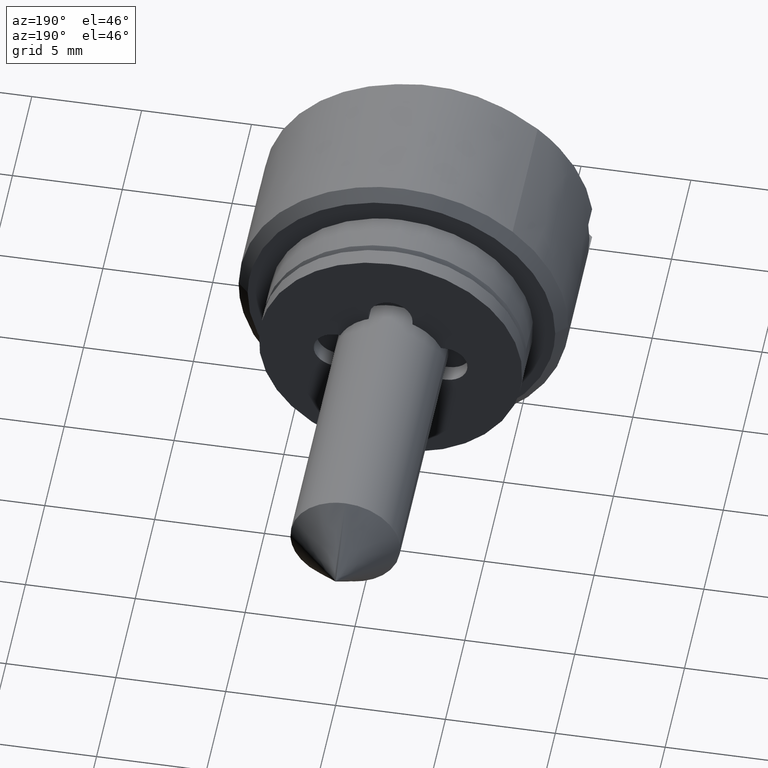
[diagram: clean part render]
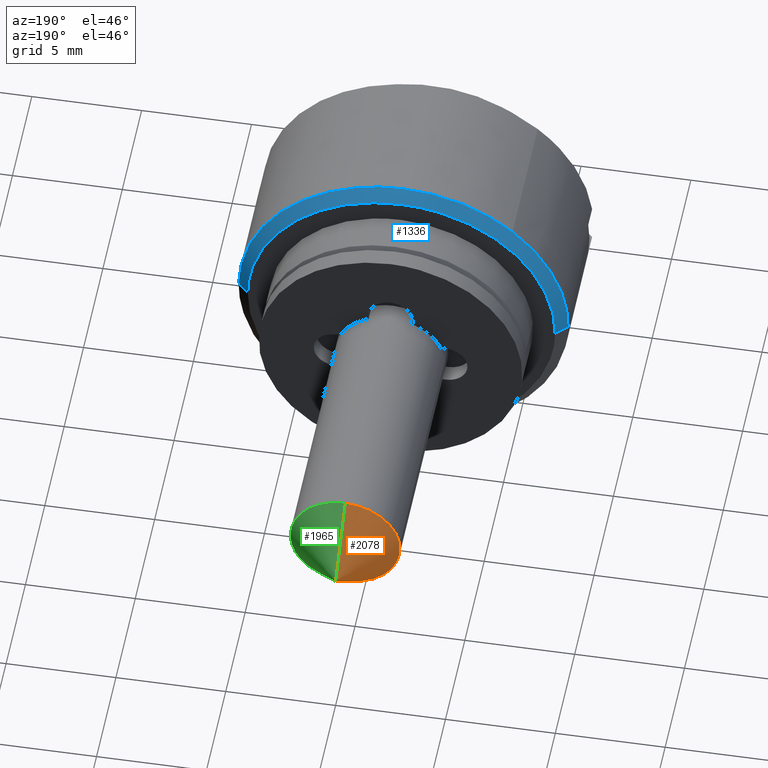
[diagram: same view with three faces highlighted in distinct colors, each labeled with its STEP entity id]
A machine part, auxiliary view with three faces highlighted in distinct colors.
Their STEP definitions:

[orange] entity #2078 — the highlighted face is a freeform B-spline surface patch.
#1457=CARTESIAN_POINT('',(12.500000000000000,2.482523815906725,0.295085586662429));
#1458=VERTEX_POINT('',#1457);
#1459=CARTESIAN_POINT('',(12.500000000000011,0.0,-2.500000000000007));
#1460=VERTEX_POINT('',#1459);
#1461=CARTESIAN_POINT('',(12.500000000000000,2.482523815906725,0.295085586662429));
#1462=CARTESIAN_POINT('',(12.499999999999996,2.499999999999999,0.148060299150525));
#1463=CARTESIAN_POINT('',(12.500000000000000,2.500000000000000,0.0));
#1464=CARTESIAN_POINT('',(12.500000000000000,2.500000000000000,-2.500000000000000));
#1465=CARTESIAN_POINT('',(12.500000000000000,0.0,-2.500000000000000));
#1473=(BOUNDED_CURVE()B_SPLINE_CURVE(2,(#1461,#1462,#1463,#1464,#1465),.UNSPECIFIED.,.F.,.U.)B_SPLINE_CURVE_WITH_KNOTS((3,2,3),(0.459124947025697,0.500000000000000,1.0),.UNSPECIFIED.)CURVE()GEOMETRIC_REPRESENTATION_ITEM()RATIONAL_B_SPLINE_CURVE((0.956026754182406,0.976055948330372,1.0,0.707106781186548,1.0))REPRESENTATION_ITEM(''));
#1474=EDGE_CURVE('',#1458,#1460,#1473,.T.);
#1556=CARTESIAN_POINT('',(12.500000000000011,0.0,2.500000000000007));
#1557=VERTEX_POINT('',#1556);
#1558=CARTESIAN_POINT('',(12.500000000000000,0.0,2.500000000000000));
#1559=CARTESIAN_POINT('',(12.499999999999998,2.220436314841433,2.500000000000000));
#1560=CARTESIAN_POINT('',(12.500000000000000,2.482523815906725,0.295085586662429));
#1568=(BOUNDED_CURVE()B_SPLINE_CURVE(2,(#1558,#1559,#1560),.UNSPECIFIED.,.F.,.U.)B_SPLINE_CURVE_WITH_KNOTS((3,3),(0.0,0.459124947025698),.UNSPECIFIED.)CURVE()GEOMETRIC_REPRESENTATION_ITEM()RATIONAL_B_SPLINE_CURVE((1.0,0.731050832856175,0.956026754182406))REPRESENTATION_ITEM(''));
#1569=EDGE_CURVE('',#1557,#1458,#1568,.T.);
#1949=CARTESIAN_POINT('',(15.0,0.0,0.0));
#1950=VERTEX_POINT('',#1949);
#1951=CARTESIAN_POINT('',(15.0,0.0,0.0));
#1952=CARTESIAN_POINT('',(12.500000000000011,0.0,2.500000000000007));
#1953=QUASI_UNIFORM_CURVE('',1,(#1951,#1952),.UNSPECIFIED.,.F.,.U.);
#1954=EDGE_CURVE('',#1950,#1557,#1953,.T.);
#1958=CARTESIAN_POINT('',(15.0,0.0,0.0));
#1959=CARTESIAN_POINT('',(12.500000000000011,0.0,-2.500000000000007));
#1960=QUASI_UNIFORM_CURVE('',1,(#1958,#1959),.UNSPECIFIED.,.F.,.U.);
#1961=EDGE_CURVE('',#1950,#1460,#1960,.T.);
#2054=CARTESIAN_POINT('',(15.0,0.0,0.0));
#2055=CARTESIAN_POINT('',(12.435937500000000,-0.022375382426298,-2.563964868356771));
#2056=CARTESIAN_POINT('',(14.999999999999998,0.0,0.0));
#2057=CARTESIAN_POINT('',(12.435937499999998,2.632687962251184,-2.587135255141858));
#2058=CARTESIAN_POINT('',(15.0,0.0,0.0));
#2059=CARTESIAN_POINT('',(12.435937500000000,2.563183859820184,0.067119331520658));
#2060=CARTESIAN_POINT('',(14.999999999999998,0.0,0.0));
#2061=CARTESIAN_POINT('',(12.435937499999998,2.493679757389183,2.721373918183175));
#2062=CARTESIAN_POINT('',(15.0,0.0,0.0));
#2063=CARTESIAN_POINT('',(12.435937500000000,-0.156532270901096,2.559280006578613));
#2071=(BOUNDED_SURFACE()B_SPLINE_SURFACE(1,2,((#2054,#2056,#2058,#2060,#2062),(#2055,#2057,#2059,#2061,#2063)),.UNSPECIFIED.,.F.,.F.,.U.)B_SPLINE_SURFACE_WITH_KNOTS((2,2),(3,2,3),(0.0,1.0),(0.0,1.0,2.0),.UNSPECIFIED.)GEOMETRIC_REPRESENTATION_ITEM()RATIONAL_B_SPLINE_SURFACE(((1.0,0.694658370458997,1.0,0.694658370458997,1.0),(1.0,0.694658370458997,1.0,0.694658370458997,1.0)))REPRESENTATION_ITEM('')SURFACE());
#2072=ORIENTED_EDGE('',*,*,#1961,.T.);
#2073=ORIENTED_EDGE('',*,*,#1474,.F.);
#2074=ORIENTED_EDGE('',*,*,#1569,.F.);
#2075=ORIENTED_EDGE('',*,*,#1954,.F.);
#2076=EDGE_LOOP('',(#2072,#2073,#2074,#2075));
#2077=FACE_OUTER_BOUND('',#2076,.T.);
#2078=ADVANCED_FACE('',(#2077),#2071,.T.);

[blue] entity #1336 — the highlighted face is a freeform B-spline surface patch.
#1223=CARTESIAN_POINT('',(-1.987500000000054,-6.987233937410951,0.060976666794888));
#1224=CARTESIAN_POINT('',(-1.987500000000055,-6.926257270616063,7.048210604205840));
#1225=CARTESIAN_POINT('',(-1.987500000000054,0.060976666794888,6.987233937410951));
#1226=CARTESIAN_POINT('',(-1.987500000000055,7.048210604205840,6.926257270616063));
#1227=CARTESIAN_POINT('',(-1.987500000000054,6.987233937410951,-0.060976666794888));
#1228=CARTESIAN_POINT('',(-2.512812500000061,-7.512526435120545,0.065560824973877));
#1229=CARTESIAN_POINT('',(-2.512812500000061,-7.446965610146669,7.578087260094423));
#1230=CARTESIAN_POINT('',(-2.512812500000061,0.065560824973877,7.512526435120545));
#1231=CARTESIAN_POINT('',(-2.512812500000061,7.578087260094423,7.446965610146669));
#1232=CARTESIAN_POINT('',(-2.512812500000061,7.512526435120545,-0.065560824973877));
#1240=(BOUNDED_SURFACE()B_SPLINE_SURFACE(2,1,((#1223,#1228),(#1224,#1229),(#1225,#1230),(#1226,#1231),(#1227,#1232)),.UNSPECIFIED.,.F.,.F.,.U.)B_SPLINE_SURFACE_WITH_KNOTS((3,2,3),(2,2),(0.0,12.447635316264479,24.895270632528948),(0.0,1.0),.UNSPECIFIED.)GEOMETRIC_REPRESENTATION_ITEM()RATIONAL_B_SPLINE_SURFACE(((1.0,1.0),(0.707106781186548,0.707106781186548),(1.0,1.0),(0.707106781186548,0.707106781186548),(1.0,1.0)))REPRESENTATION_ITEM('')SURFACE());
#1241=CARTESIAN_POINT('',(-2.500000000002919,-7.499714422983962,0.065449016258878));
#1242=VERTEX_POINT('',#1241);
#1243=CARTESIAN_POINT('',(-2.500000000000060,0.0,7.500000000000000));
#1244=VERTEX_POINT('',#1243);
#1245=CARTESIAN_POINT('',(-2.500000000002919,-7.499714422983962,0.065449016258878));
#1246=CARTESIAN_POINT('',(-2.500000000000060,-7.434834079420601,7.500000000000000));
#1247=CARTESIAN_POINT('',(-2.500000000000060,0.0,7.500000000000000));
#1255=(BOUNDED_CURVE()B_SPLINE_CURVE(2,(#1245,#1246,#1247),.UNSPECIFIED.,.F.,.U.)B_SPLINE_CURVE_WITH_KNOTS((3,3),(0.251539894335976,0.500000000000000),.UNSPECIFIED.)CURVE()GEOMETRIC_REPRESENTATION_ITEM()RATIONAL_B_SPLINE_CURVE((0.996414028098118,0.708910879621334,1.0))REPRESENTATION_ITEM(''));
#1256=EDGE_CURVE('',#1242,#1244,#1255,.T.);
#1257=ORIENTED_EDGE('',*,*,#1256,.F.);
#1258=CARTESIAN_POINT('',(-2.000000000003357,-6.999733461452316,0.061085748513027));
#1259=VERTEX_POINT('',#1258);
#1260=CARTESIAN_POINT('',(-2.000000000003357,-6.999733461452316,0.061085748513027));
#1261=CARTESIAN_POINT('',(-2.500000000002919,-7.499714422983962,0.065449016258878));
#1262=QUASI_UNIFORM_CURVE('',1,(#1260,#1261),.UNSPECIFIED.,.F.,.U.);
#1263=EDGE_CURVE('',#1259,#1242,#1262,.T.);
#1264=ORIENTED_EDGE('',*,*,#1263,.F.);
#1265=CARTESIAN_POINT('',(-2.000000000000055,0.0,7.0));
#1266=VERTEX_POINT('',#1265);
#1267=CARTESIAN_POINT('',(-2.000000000000055,0.0,7.0));
#1268=CARTESIAN_POINT('',(-2.000000000000055,-6.939178474116506,6.999999999999999));
#1269=CARTESIAN_POINT('',(-2.000000000003358,-6.999733461452316,0.061085748513027));
#1277=(BOUNDED_CURVE()B_SPLINE_CURVE(2,(#1267,#1268,#1269),.UNSPECIFIED.,.F.,.U.)B_SPLINE_CURVE_WITH_KNOTS((3,3),(0.500000000000000,0.748460105663786),.UNSPECIFIED.)CURVE()GEOMETRIC_REPRESENTATION_ITEM()RATIONAL_B_SPLINE_CURVE((1.0,0.708910879621613,0.996414028097566))REPRESENTATION_ITEM(''));
#1278=EDGE_CURVE('',#1266,#1259,#1277,.T.);
#1279=ORIENTED_EDGE('',*,*,#1278,.F.);
#1280=CARTESIAN_POINT('',(-2.000000000003358,6.999733461452316,-0.061085748513027));
#1281=VERTEX_POINT('',#1280);
#1282=CARTESIAN_POINT('',(-2.000000000003358,6.999733461452316,-0.061085748513027));
#1283=CARTESIAN_POINT('',(-2.000000000000055,7.0,-0.030543455769293));
#1284=CARTESIAN_POINT('',(-2.000000000000055,7.0,0.0));
#1285=CARTESIAN_POINT('',(-2.000000000000055,6.999999999999999,6.999999999999999));
#1286=CARTESIAN_POINT('',(-2.000000000000055,0.0,7.0));
#1294=(BOUNDED_CURVE()B_SPLINE_CURVE(2,(#1282,#1283,#1284,#1285,#1286),.UNSPECIFIED.,.F.,.U.)B_SPLINE_CURVE_WITH_KNOTS((3,2,3),(0.248460105663786,0.250000000000000,0.500000000000000),.UNSPECIFIED.)CURVE()GEOMETRIC_REPRESENTATION_ITEM()RATIONAL_B_SPLINE_CURVE((0.996414028097566,0.998195901564935,1.0,0.707106781186547,1.0))REPRESENTATION_ITEM(''));
#1295=EDGE_CURVE('',#1281,#1266,#1294,.T.);
#1296=ORIENTED_EDGE('',*,*,#1295,.F.);
#1297=CARTESIAN_POINT('',(-2.500000000002919,7.499714422983961,-0.065449016258879));
#1298=VERTEX_POINT('',#1297);
#1299=CARTESIAN_POINT('',(-2.000000000003358,6.999733461452316,-0.061085748513027));
#1300=CARTESIAN_POINT('',(-2.500000000002919,7.499714422983961,-0.065449016258879));
#1301=QUASI_UNIFORM_CURVE('',1,(#1299,#1300),.UNSPECIFIED.,.F.,.U.);
#1302=EDGE_CURVE('',#1281,#1298,#1301,.T.);
#1303=ORIENTED_EDGE('',*,*,#1302,.T.);
#1304=CARTESIAN_POINT('',(-2.500000000000060,4.969650188898491,5.617168058726845));
#1305=VERTEX_POINT('',#1304);
#1306=CARTESIAN_POINT('',(-2.500000000000061,4.969650188898491,5.617168058726845));
#1307=CARTESIAN_POINT('',(-2.500000000000060,7.500000000000000,3.378503930091113));
#1308=CARTESIAN_POINT('',(-2.500000000000060,7.500000000000000,0.0));
#1309=CARTESIAN_POINT('',(-2.500000000000060,7.500000000000000,-0.032725131176329));
#1310=CARTESIAN_POINT('',(-2.500000000002920,7.499714422983961,-0.065449016258879));
#1318=(BOUNDED_CURVE()B_SPLINE_CURVE(2,(#1306,#1307,#1308,#1309,#1310),.UNSPECIFIED.,.F.,.U.)B_SPLINE_CURVE_WITH_KNOTS((3,2,3),(0.615779878771726,0.750000000000000,0.751539894335977),.UNSPECIFIED.)CURVE()GEOMETRIC_REPRESENTATION_ITEM()RATIONAL_B_SPLINE_CURVE((0.854350159830216,0.842751346655677,1.0,0.998195901565213,0.996414028098116))REPRESENTATION_ITEM(''));
#1319=EDGE_CURVE('',#1305,#1298,#1318,.T.);
#1320=ORIENTED_EDGE('',*,*,#1319,.F.);
#1321=CARTESIAN_POINT('',(-2.500000000000060,0.0,7.500000000000000));
#1322=CARTESIAN_POINT('',(-2.500000000000060,2.841495551498860,7.500000000000000));
#1323=CARTESIAN_POINT('',(-2.500000000000060,4.969650188898492,5.617168058726845));
#1331=(BOUNDED_CURVE()B_SPLINE_CURVE(2,(#1321,#1322,#1323),.UNSPECIFIED.,.F.,.U.)B_SPLINE_CURVE_WITH_KNOTS((3,3),(0.500000000000000,0.615779878771727),.UNSPECIFIED.)CURVE()GEOMETRIC_REPRESENTATION_ITEM()RATIONAL_B_SPLINE_CURVE((1.0,0.864355434530870,0.854350159830216))REPRESENTATION_ITEM(''));
#1332=EDGE_CURVE('',#1244,#1305,#1331,.T.);
#1333=ORIENTED_EDGE('',*,*,#1332,.F.);
#1334=EDGE_LOOP('',(#1257,#1264,#1279,#1296,#1303,#1320,#1333));
#1335=FACE_OUTER_BOUND('',#1334,.T.);
#1336=ADVANCED_FACE('',(#1335),#1240,.T.);

[green] entity #1965 — the highlighted face is a freeform B-spline surface patch.
#1459=CARTESIAN_POINT('',(12.500000000000011,0.0,-2.500000000000007));
#1460=VERTEX_POINT('',#1459);
#1476=CARTESIAN_POINT('',(12.500000000000000,-2.495336996053096,-0.152621348862836));
#1477=VERTEX_POINT('',#1476);
#1478=CARTESIAN_POINT('',(12.500000000000000,0.0,-2.500000000000000));
#1479=CARTESIAN_POINT('',(12.500000000000000,-2.351765167215717,-2.500000000000000));
#1480=CARTESIAN_POINT('',(12.500000000000002,-2.495336996053095,-0.152621348862836));
#1488=(BOUNDED_CURVE()B_SPLINE_CURVE(2,(#1478,#1479,#1480),.UNSPECIFIED.,.F.,.U.)B_SPLINE_CURVE_WITH_KNOTS((3,3),(0.0,0.478665924476830),.UNSPECIFIED.)CURVE()GEOMETRIC_REPRESENTATION_ITEM()RATIONAL_B_SPLINE_CURVE((1.0,0.719603993287329,0.976072041665586))REPRESENTATION_ITEM(''));
#1489=EDGE_CURVE('',#1460,#1477,#1488,.T.);
#1556=CARTESIAN_POINT('',(12.500000000000011,0.0,2.500000000000007));
#1557=VERTEX_POINT('',#1556);
#1603=CARTESIAN_POINT('',(12.500000000000000,-2.495336996053095,-0.152621348862836));
#1604=CARTESIAN_POINT('',(12.500000000000004,-2.500000000000000,-0.076381908272237));
#1605=CARTESIAN_POINT('',(12.500000000000000,-2.500000000000000,0.0));
#1606=CARTESIAN_POINT('',(12.500000000000000,-2.500000000000000,2.500000000000000));
#1607=CARTESIAN_POINT('',(12.500000000000000,0.0,2.500000000000000));
#1615=(BOUNDED_CURVE()B_SPLINE_CURVE(2,(#1603,#1604,#1605,#1606,#1607),.UNSPECIFIED.,.F.,.U.)B_SPLINE_CURVE_WITH_KNOTS((3,2,3),(0.478665924476830,0.500000000000000,1.0),.UNSPECIFIED.)CURVE()GEOMETRIC_REPRESENTATION_ITEM()RATIONAL_B_SPLINE_CURVE((0.976072041665586,0.987502787899219,1.0,0.707106781186548,1.0))REPRESENTATION_ITEM(''));
#1616=EDGE_CURVE('',#1477,#1557,#1615,.T.);
#1931=CARTESIAN_POINT('',(15.0,0.0,0.0));
#1932=CARTESIAN_POINT('',(12.435937500000000,0.067119331520661,2.563183859820184));
#1933=CARTESIAN_POINT('',(15.0,0.0,0.0));
#1934=CARTESIAN_POINT('',(12.435937499999998,-2.633912877398793,2.633912877398800));
#1935=CARTESIAN_POINT('',(15.0,0.0,0.0));
#1936=CARTESIAN_POINT('',(12.435937500000000,-2.563183859820184,-0.067119331520653));
#1937=CARTESIAN_POINT('',(15.0,0.0,0.0));
#1938=CARTESIAN_POINT('',(12.435937499999998,-2.492454842241575,-2.768151540440107));
#1939=CARTESIAN_POINT('',(15.0,0.0,0.0));
#1940=CARTESIAN_POINT('',(12.435937500000000,0.201174025139677,-2.556158351025142));
#1948=(BOUNDED_SURFACE()B_SPLINE_SURFACE(1,2,((#1931,#1933,#1935,#1937,#1939),(#1932,#1934,#1936,#1938,#1940)),.UNSPECIFIED.,.F.,.F.,.U.)B_SPLINE_SURFACE_WITH_KNOTS((2,2),(3,2,3),(0.0,1.0),(0.0,1.0,2.0),.UNSPECIFIED.)GEOMETRIC_REPRESENTATION_ITEM()RATIONAL_B_SPLINE_SURFACE(((1.0,0.688354575693754,1.0,0.688354575693754,1.0),(1.0,0.688354575693754,1.0,0.688354575693754,1.0)))REPRESENTATION_ITEM('')SURFACE());
#1949=CARTESIAN_POINT('',(15.0,0.0,0.0));
#1950=VERTEX_POINT('',#1949);
#1951=CARTESIAN_POINT('',(15.0,0.0,0.0));
#1952=CARTESIAN_POINT('',(12.500000000000011,0.0,2.500000000000007));
#1953=QUASI_UNIFORM_CURVE('',1,(#1951,#1952),.UNSPECIFIED.,.F.,.U.);
#1954=EDGE_CURVE('',#1950,#1557,#1953,.T.);
#1955=ORIENTED_EDGE('',*,*,#1954,.T.);
#1956=ORIENTED_EDGE('',*,*,#1616,.F.);
#1957=ORIENTED_EDGE('',*,*,#1489,.F.);
#1958=CARTESIAN_POINT('',(15.0,0.0,0.0));
#1959=CARTESIAN_POINT('',(12.500000000000011,0.0,-2.500000000000007));
#1960=QUASI_UNIFORM_CURVE('',1,(#1958,#1959),.UNSPECIFIED.,.F.,.U.);
#1961=EDGE_CURVE('',#1950,#1460,#1960,.T.);
#1962=ORIENTED_EDGE('',*,*,#1961,.F.);
#1963=EDGE_LOOP('',(#1955,#1956,#1957,#1962));
#1964=FACE_OUTER_BOUND('',#1963,.T.);
#1965=ADVANCED_FACE('',(#1964),#1948,.T.);